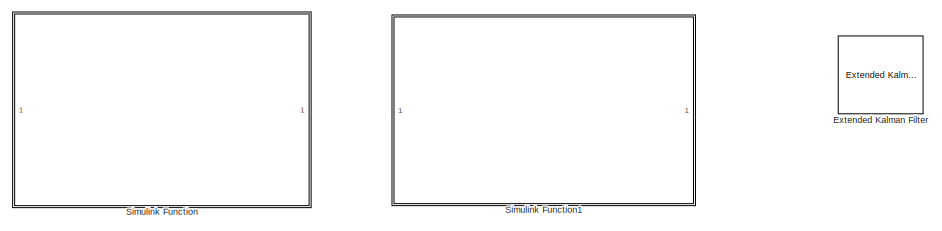
[diagram: root canvas - part 1/3, top right region]
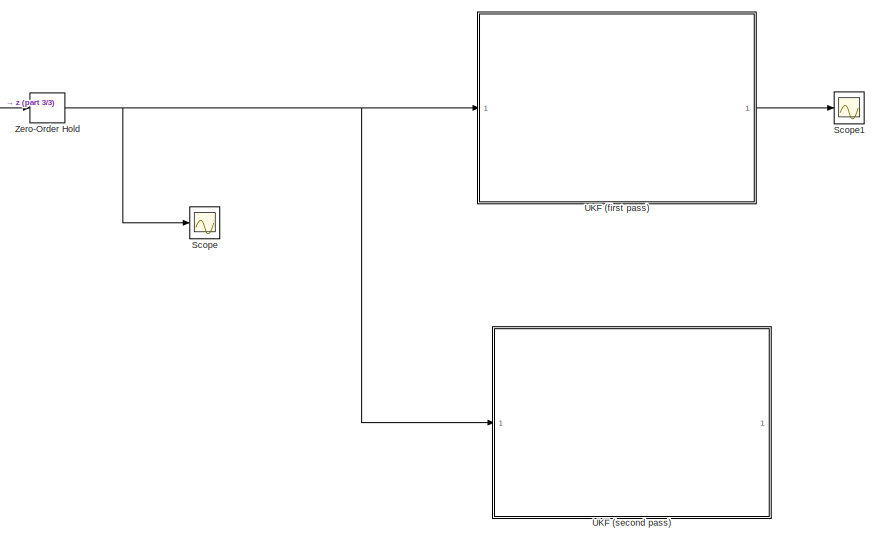
[diagram: root canvas - part 2/3, bottom center region]
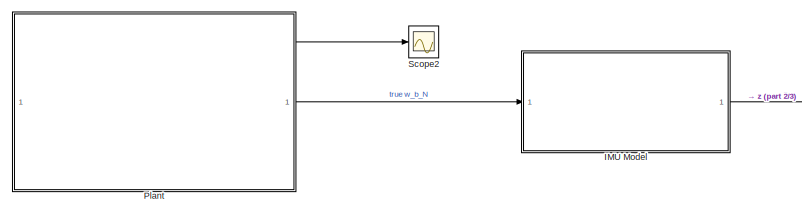
[diagram: root canvas - part 3/3, middle left region]
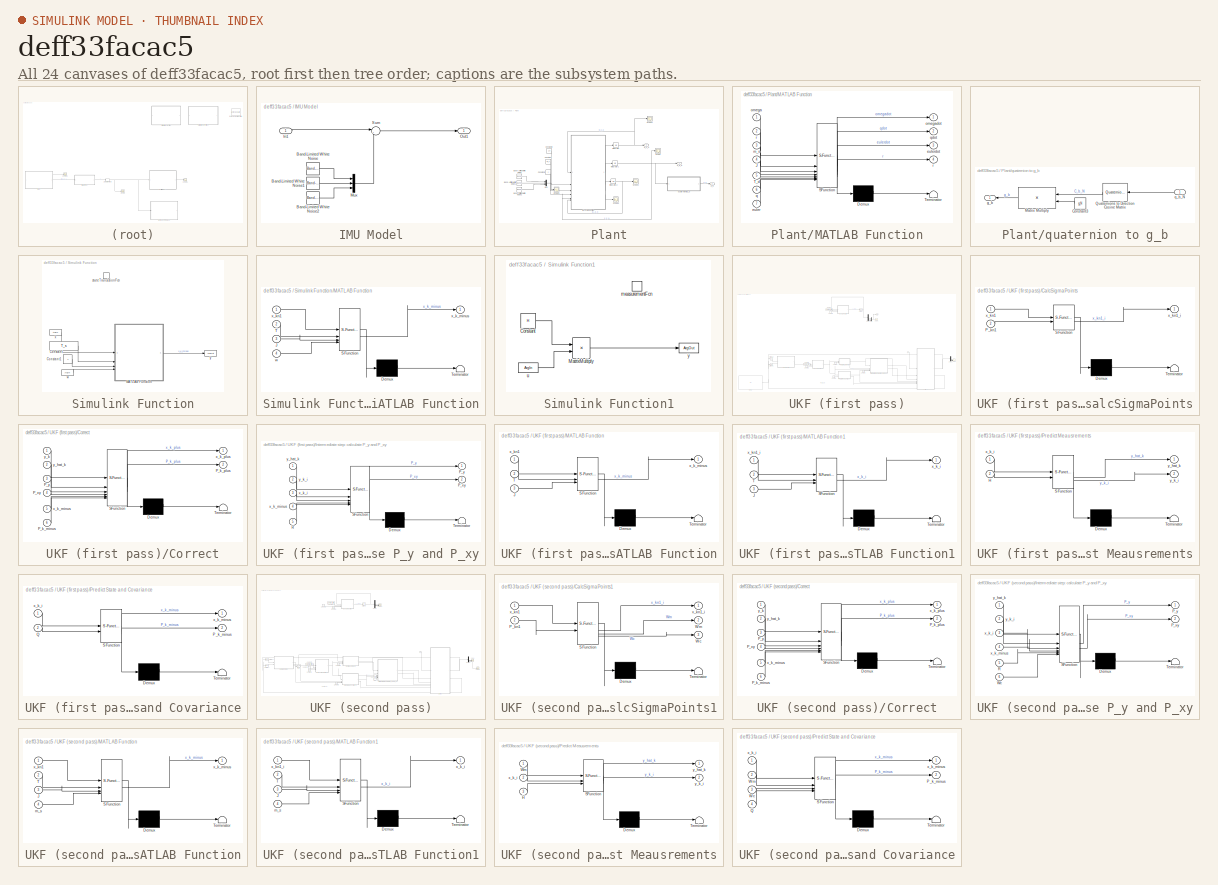
[diagram: thumbnail index - all 24 canvases of the model, root first then tree order]
MODEL slx_deff33facac5
KIND model
CONFIG AbsTol = auto
CONFIG EnableMultiTasking = off
CONFIG FixedStep = auto
CONFIG MaxStep = auto
CONFIG MinStep = auto
CONFIG RelTol = 1e-3
CONFIG SampleTimeConstraint = Unconstrained
CONFIG SolverName = ode15s
CONFIG StartTime = 0.0
CONFIG StopTime = 80
BLOCK [Reference] Extended Kalman Filter  REF=sharedTrackingLibrary/Extended Kalman Filter
  Commented = on
  LibrarySourceBlock = cstblocks/State Estimation/Extended Kalman Filter
  SourceBlock = sharedTrackingLibrary/Extended Kalman Filter
  SourceType = Extended Kalman Filter
BLOCK [SubSystem] IMU Model
BLOCK [Reference] IMU Model/Band-Limited White Noise  REF=simulink/Sources/Band-Limited
White Noise
  SourceBlock = simulink/Sources/Band-Limited\nWhite Noise
  SourceType = Band-Limited White Noise.
BLOCK [Reference] IMU Model/Band-Limited White Noise1  REF=simulink/Sources/Band-Limited
White Noise
  SourceBlock = simulink/Sources/Band-Limited\nWhite Noise
  SourceType = Band-Limited White Noise.
BLOCK [Reference] IMU Model/Band-Limited White Noise2  REF=simulink/Sources/Band-Limited
White Noise
  SourceBlock = simulink/Sources/Band-Limited\nWhite Noise
  SourceType = Band-Limited White Noise.
BLOCK [Inport] IMU Model/In1
BLOCK [Mux] IMU Model/Mux
  DisplayOption = bar
  Inputs = 3
BLOCK [Outport] IMU Model/Out1
BLOCK [Sum] IMU Model/Sum
  Inputs = |++
BLOCK [SubSystem] Plant
BLOCK [Reference] Plant/Band-Limited White Noise  REF=simulink/Sources/Band-Limited
White Noise
  SourceBlock = simulink/Sources/Band-Limited\nWhite Noise
  SourceType = Band-Limited White Noise.
BLOCK [Reference] Plant/Band-Limited White Noise1  REF=simulink/Sources/Band-Limited
White Noise
  SourceBlock = simulink/Sources/Band-Limited\nWhite Noise
  SourceType = Band-Limited White Noise.
BLOCK [Reference] Plant/Band-Limited White Noise2  REF=simulink/Sources/Band-Limited
White Noise
  SourceBlock = simulink/Sources/Band-Limited\nWhite Noise
  SourceType = Band-Limited White Noise.
BLOCK [Constant] Plant/Constant
  Value = m_s
BLOCK [Constant] Plant/Constant1
  Value = J
BLOCK [Constant] Plant/Constant2
  Value = r_0
BLOCK [Integrator] Plant/Integrator
  InitialCondition = omega_0
BLOCK [Integrator] Plant/Integrator1
  InitialCondition = q_0
  NameLocation = top
BLOCK [Integrator] Plant/Integrator2
  InitialCondition = EA_0
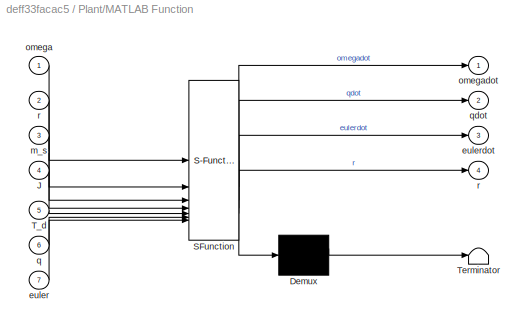
BLOCK [SubSystem] Plant/MATLAB Function
  ErrorFcn = Stateflow.Translate.translate
  PermitHierarchicalResolution = ExplicitOnly
  SFBlockType = MATLAB Function
  TreatAsAtomicUnit = on
BLOCK [Demux] Plant/MATLAB Function/ Demux 
  Outputs = 1
BLOCK [S-Function] Plant/MATLAB Function/ SFunction 
  EnableBusSupport = on
  FunctionName = sf_sfun
  PortCounts = [7 5]
  SFcnIsStateOwnerBlock = off
  SFunctionDeploymentMode = off
  Tag = Stateflow S-Function 4
BLOCK [Terminator] Plant/MATLAB Function/ Terminator 
BLOCK [Inport] Plant/MATLAB Function/J
  Port = 4
BLOCK [Inport] Plant/MATLAB Function/T_d
  Port = 5
BLOCK [Inport] Plant/MATLAB Function/euler
  Port = 7
BLOCK [Outport] Plant/MATLAB Function/eulerdot
  Port = 3
BLOCK [Inport] Plant/MATLAB Function/m_s
  Port = 3
BLOCK [Inport] Plant/MATLAB Function/omega
BLOCK [Outport] Plant/MATLAB Function/omegadot
BLOCK [Inport] Plant/MATLAB Function/q
  Port = 6
BLOCK [Outport] Plant/MATLAB Function/qdot
  Port = 2
BLOCK [Outport] Plant/MATLAB Function/r
  Port = 4
BLOCK [Inport] Plant/MATLAB Function/r 
  Port = 2
BLOCK [Mux] Plant/Mux
  DisplayOption = bar
  Inputs = 3
BLOCK [Scope] Plant/Scope
  Floating = off
  NumInputPorts = 1
  ScopeSpecificationString = Simulink.scopes.TimeScopeBlockCfg('CurrentConfiguration', extmgr.ConfigurationSet(extmgr.Configuration('Core','General UI',true),extmgr.Configuration('Core','Source UI',true),extmgr.Configuration('Sources','WiredSimulink',true,'DataLogging',true,'DataLoggingVariableName','q_b_N','DataLoggingSaveFormat','StructureWithTime'),extmgr.Configuration('Visuals','Time Domain',true,'SerializedDisplays',{str...<+1570ch>
BLOCK [Scope] Plant/Scope1
  Floating = off
  NumInputPorts = 1
  ScopeSpecificationString = Simulink.scopes.TimeScopeBlockCfg('CurrentConfiguration', extmgr.ConfigurationSet(extmgr.Configuration('Core','General UI',true),extmgr.Configuration('Core','Source UI',true),extmgr.Configuration('Sources','WiredSimulink',true,'DataLoggingVariableName','ScopeData1'),extmgr.Configuration('Visuals','Time Domain',true,'SerializedDisplays',{struct('MinYLimReal','0.00741','MaxYLimReal','0.55473','YLabe...<+1503ch>
BLOCK [Scope] Plant/Scope2
  Floating = off
  NumInputPorts = 1
  ScopeSpecificationString = Simulink.scopes.TimeScopeBlockCfg('CurrentConfiguration', extmgr.ConfigurationSet(extmgr.Configuration('Core','General UI',true),extmgr.Configuration('Core','Source UI',true),extmgr.Configuration('Sources','WiredSimulink',true,'DataLoggingVariableName','EA_b_N','DataLogging',true,'DataLoggingSaveFormat','StructureWithTime'),extmgr.Configuration('Visuals','Time Domain',true,'SerializedDisplays',{st...<+1609ch>
BLOCK [Scope] Plant/Scope3
  Floating = off
  NumInputPorts = 1
  ScopeSpecificationString = Simulink.scopes.TimeScopeBlockCfg('CurrentConfiguration', extmgr.ConfigurationSet(extmgr.Configuration('Core','General UI',true),extmgr.Configuration('Core','Source UI',true),extmgr.Configuration('Sources','WiredSimulink',true,'DataLoggingVariableName','r_b','DataLogging',true,'DataLoggingSaveFormat','StructureWithTime'),extmgr.Configuration('Visuals','Time Domain',true,'SerializedDisplays',{struc...<+1619ch>
BLOCK [Scope] Plant/Scope4
  Floating = off
  NumInputPorts = 1
  ScopeSpecificationString = Simulink.scopes.TimeScopeBlockCfg('CurrentConfiguration', extmgr.ConfigurationSet(extmgr.Configuration('Core','General UI',true),extmgr.Configuration('Core','Source UI',true),extmgr.Configuration('Sources','WiredSimulink',true,'DataLoggingVariableName','ScopeData1'),extmgr.Configuration('Visuals','Time Domain',true,'SerializedDisplays',{struct('MinYLimReal','-0.000014','MaxYLimReal','0.000013','YL...<+1567ch>
BLOCK [Outport] Plant/g_b
  Port = 3
BLOCK [Outport] Plant/q_b_N
BLOCK [SubSystem] Plant/quaternion to g_b
  NameLocation = top
BLOCK [Constant] Plant/quaternion to g_b/Constant3
  NameLocation = top
  Value = g_N
BLOCK [Product] Plant/quaternion to g_b/Matrix Multiply
  Multiplication = Matrix(*)
  NameLocation = top
BLOCK [Reference] Plant/quaternion to g_b/Quaternions to Direction Cosine Matrix  REF=sharedtransform/Quaternions to 
Direction Cosine Matrix
  NameLocation = top
  SourceBlock = sharedtransform/Quaternions to \nDirection Cosine Matrix
  SourceType = Quaternion2DCM
BLOCK [Outport] Plant/quaternion to g_b/g_b
  NameLocation = top
BLOCK [Inport] Plant/quaternion to g_b/q_b_N
  NameLocation = top
BLOCK [Outport] Plant/w_b_N
  Port = 2
BLOCK [Scope] Scope
  Floating = off
  NumInputPorts = 1
  ScopeSpecificationString = Simulink.scopes.TimeScopeBlockCfg('CurrentConfiguration', extmgr.ConfigurationSet(extmgr.Configuration('Core','General UI',true),extmgr.Configuration('Core','Source UI',true),extmgr.Configuration('Sources','WiredSimulink',true,'DataLoggingVariableName','ScopeData2'),extmgr.Configuration('Visuals','Time Domain',true,'SerializedDisplays',{struct('MinYLimReal','-0.13768','MaxYLimReal','0.16725','YLab...<+1578ch>
BLOCK [Scope] Scope1
  Commented = on
  Floating = off
  NumInputPorts = 1
  ScopeSpecificationString = Simulink.scopes.TimeScopeBlockCfg('CurrentConfiguration', extmgr.ConfigurationSet(extmgr.Configuration('Core','General UI',true),extmgr.Configuration('Core','Source UI',true),extmgr.Configuration('Sources','WiredSimulink',true,'DataLoggingVariableName','ScopeData1'),extmgr.Configuration('Visuals','Time Domain',true,'SerializedDisplays',{struct('MinYLimReal','-1.24502','MaxYLimReal','1.26361','YLab...<+2141ch>
BLOCK [Scope] Scope2
  Floating = off
  NumInputPorts = 1
  ScopeSpecificationString = Simulink.scopes.TimeScopeBlockCfg('CurrentConfiguration', extmgr.ConfigurationSet(extmgr.Configuration('Core','General UI',true),extmgr.Configuration('Core','Source UI',true),extmgr.Configuration('Sources','WiredSimulink',true,'DataLoggingVariableName','ScopeData2'),extmgr.Configuration('Visuals','Time Domain',true,'SerializedDisplays',{struct('MinYLimReal','-0.223','MaxYLimReal','1.13589','YLabel...<+1534ch>
BLOCK [SubSystem] Simulink Function
  Commented = on
  TreatAsAtomicUnit = on
BLOCK [Constant] Simulink Function/Constant
  Value = T_s
BLOCK [Constant] Simulink Function/Constant1
  Value = J
BLOCK [SubSystem] Simulink Function/MATLAB Function
  ErrorFcn = Stateflow.Translate.translate
  PermitHierarchicalResolution = ExplicitOnly
  SFBlockType = MATLAB Function
  TreatAsAtomicUnit = on
BLOCK [Demux] Simulink Function/MATLAB Function/ Demux 
  Outputs = 1
BLOCK [S-Function] Simulink Function/MATLAB Function/ SFunction 
  EnableBusSupport = on
  FunctionName = sf_sfun
  PortCounts = [4 2]
  SFcnIsStateOwnerBlock = off
  SFunctionDeploymentMode = off
  Tag = Stateflow S-Function 2
BLOCK [Terminator] Simulink Function/MATLAB Function/ Terminator 
BLOCK [Inport] Simulink Function/MATLAB Function/J
  Port = 3
BLOCK [Inport] Simulink Function/MATLAB Function/T
  Port = 2
BLOCK [Inport] Simulink Function/MATLAB Function/w
  Port = 4
BLOCK [Outport] Simulink Function/MATLAB Function/x_k_minus
BLOCK [Inport] Simulink Function/MATLAB Function/x_kn1
BLOCK [TriggerPort] Simulink Function/stateTransistionFcn
  FunctionName = stateTransistionFcn
  FunctionVisibility = scoped
  IsSimulinkFunction = on
  StatesWhenEnabling = held
  TriggerType = function-call
  VariantControl = (inherit)
BLOCK [ArgIn] Simulink Function/w
  ArgumentName = w
  DisableCoverage = on
  Port = 2
  PortDimensions = 3
BLOCK [ArgIn] Simulink Function/x
  ArgumentName = x
  DisableCoverage = on
  PortDimensions = 7
BLOCK [ArgOut] Simulink Function/y
  ArgumentName = xNext
  DisableCoverage = on
  PortDimensions = 7
BLOCK [SubSystem] Simulink Function1
  Commented = on
  TreatAsAtomicUnit = on
BLOCK [Constant] Simulink Function1/Constant
  Value = H
BLOCK [Product] Simulink Function1/MatrixMultiply
  Multiplication = Matrix(*)
BLOCK [TriggerPort] Simulink Function1/measurementFcn
  FunctionName = measurementFcn
  FunctionVisibility = scoped
  IsSimulinkFunction = on
  StatesWhenEnabling = held
  TriggerType = function-call
  VariantControl = (inherit)
BLOCK [ArgIn] Simulink Function1/u
  ArgumentName = x
  DisableCoverage = on
  PortDimensions = 7
BLOCK [ArgOut] Simulink Function1/y
  ArgumentName = y
  DisableCoverage = on
  PortDimensions = 3
BLOCK [SubSystem] UKF (first pass)
  Commented = on
  TreatAsAtomicUnit = on
BLOCK [SubSystem] UKF (first pass)/CalcSigmaPoints
  ErrorFcn = Stateflow.Translate.translate
  PermitHierarchicalResolution = ExplicitOnly
  SFBlockType = MATLAB Function
  TreatAsAtomicUnit = on
BLOCK [Demux] UKF (first pass)/CalcSigmaPoints/ Demux 
  Outputs = 1
BLOCK [S-Function] UKF (first pass)/CalcSigmaPoints/ SFunction 
  EnableBusSupport = on
  FunctionName = sf_sfun
  PortCounts = [2 2]
  SFcnIsStateOwnerBlock = off
  SFunctionDeploymentMode = off
  Tag = Stateflow S-Function 3
BLOCK [Terminator] UKF (first pass)/CalcSigmaPoints/ Terminator 
BLOCK [Inport] UKF (first pass)/CalcSigmaPoints/P_kn1
  Port = 2
BLOCK [Inport] UKF (first pass)/CalcSigmaPoints/x_kn1
BLOCK [Outport] UKF (first pass)/CalcSigmaPoints/x_kn1_i
BLOCK [Constant] UKF (first pass)/Constant
  Value = sample_time
BLOCK [Constant] UKF (first pass)/Constant1
  Value = J
BLOCK [Constant] UKF (first pass)/Constant2
  Value = sample_time
BLOCK [Constant] UKF (first pass)/Constant3
  Value = J
BLOCK [Constant] UKF (first pass)/Constant6
  Value = Q
BLOCK [Constant] UKF (first pass)/Constant7
  Value = H
BLOCK [Constant] UKF (first pass)/Constant8
  Value = R
BLOCK [SubSystem] UKF (first pass)/Correct
  ErrorFcn = Stateflow.Translate.translate
  PermitHierarchicalResolution = ExplicitOnly
  SFBlockType = MATLAB Function
  TreatAsAtomicUnit = on
BLOCK [Demux] UKF (first pass)/Correct/ Demux 
  Outputs = 1
BLOCK [S-Function] UKF (first pass)/Correct/ SFunction 
  EnableBusSupport = on
  FunctionName = sf_sfun
  PortCounts = [6 3]
  SFcnIsStateOwnerBlock = off
  SFunctionDeploymentMode = off
  Tag = Stateflow S-Function 9
BLOCK [Terminator] UKF (first pass)/Correct/ Terminator 
BLOCK [Inport] UKF (first pass)/Correct/P_k_minus
  Port = 6
BLOCK [Outport] UKF (first pass)/Correct/P_k_plus
  Port = 2
BLOCK [Inport] UKF (first pass)/Correct/P_xy
  Port = 4
BLOCK [Inport] UKF (first pass)/Correct/P_y
  Port = 3
BLOCK [Inport] UKF (first pass)/Correct/x_k_minus
  Port = 5
BLOCK [Outport] UKF (first pass)/Correct/x_k_plus
BLOCK [Inport] UKF (first pass)/Correct/y_hat_k
  Port = 2
BLOCK [Inport] UKF (first pass)/Correct/y_k
BLOCK [Demux] UKF (first pass)/Demux
  Outputs = 7
BLOCK [Demux] UKF (first pass)/Demux1
  Outputs = 7
BLOCK [Display] UKF (first pass)/Display
  Decimation = 1
  NameLocation = top
BLOCK [SubSystem] UKF (first pass)/Intermediate step: calculate P_y and P_xy
  ErrorFcn = Stateflow.Translate.translate
  PermitHierarchicalResolution = ExplicitOnly
  SFBlockType = MATLAB Function
  TreatAsAtomicUnit = on
BLOCK [Demux] UKF (first pass)/Intermediate step: calculate P_y and P_xy/ Demux 
  Outputs = 1
BLOCK [S-Function] UKF (first pass)/Intermediate step: calculate P_y and P_xy/ SFunction 
  EnableBusSupport = on
  FunctionName = sf_sfun
  PortCounts = [5 3]
  SFcnIsStateOwnerBlock = off
  SFunctionDeploymentMode = off
  Tag = Stateflow S-Function 8
BLOCK [Terminator] UKF (first pass)/Intermediate step: calculate P_y and P_xy/ Terminator 
BLOCK [Outport] UKF (first pass)/Intermediate step: calculate P_y and P_xy/P_xy
  Port = 2
BLOCK [Outport] UKF (first pass)/Intermediate step: calculate P_y and P_xy/P_y
BLOCK [Inport] UKF (first pass)/Intermediate step: calculate P_y and P_xy/R
  Port = 5
BLOCK [Inport] UKF (first pass)/Intermediate step: calculate P_y and P_xy/x_k_i
  Port = 3
BLOCK [Inport] UKF (first pass)/Intermediate step: calculate P_y and P_xy/x_k_minus
  Port = 4
BLOCK [Inport] UKF (first pass)/Intermediate step: calculate P_y and P_xy/y_hat_k
BLOCK [Inport] UKF (first pass)/Intermediate step: calculate P_y and P_xy/y_k_i
  Port = 2
BLOCK [SubSystem] UKF (first pass)/MATLAB Function
  ErrorFcn = Stateflow.Translate.translate
  PermitHierarchicalResolution = ExplicitOnly
  SFBlockType = MATLAB Function
  TreatAsAtomicUnit = on
BLOCK [Demux] UKF (first pass)/MATLAB Function/ Demux 
  Outputs = 1
BLOCK [S-Function] UKF (first pass)/MATLAB Function/ SFunction 
  EnableBusSupport = on
  FunctionName = sf_sfun
  PortCounts = [3 2]
  SFcnIsStateOwnerBlock = off
  SFunctionDeploymentMode = off
  Tag = Stateflow S-Function 1
BLOCK [Terminator] UKF (first pass)/MATLAB Function/ Terminator 
BLOCK [Inport] UKF (first pass)/MATLAB Function/J
  Port = 3
BLOCK [Inport] UKF (first pass)/MATLAB Function/T
  Port = 2
BLOCK [Outport] UKF (first pass)/MATLAB Function/x_k_minus
BLOCK [Inport] UKF (first pass)/MATLAB Function/x_kn1
BLOCK [SubSystem] UKF (first pass)/MATLAB Function1
  ErrorFcn = Stateflow.Translate.translate
  PermitHierarchicalResolution = ExplicitOnly
  SFBlockType = MATLAB Function
  TreatAsAtomicUnit = on
BLOCK [Demux] UKF (first pass)/MATLAB Function1/ Demux 
  Outputs = 1
BLOCK [S-Function] UKF (first pass)/MATLAB Function1/ SFunction 
  EnableBusSupport = on
  FunctionName = sf_sfun
  PortCounts = [3 2]
  SFcnIsStateOwnerBlock = off
  SFunctionDeploymentMode = off
  Tag = Stateflow S-Function 5
BLOCK [Terminator] UKF (first pass)/MATLAB Function1/ Terminator 
BLOCK [Inport] UKF (first pass)/MATLAB Function1/J
  Port = 3
BLOCK [Inport] UKF (first pass)/MATLAB Function1/T
  Port = 2
BLOCK [Outport] UKF (first pass)/MATLAB Function1/x_k_i
BLOCK [Inport] UKF (first pass)/MATLAB Function1/x_kn1_i
BLOCK [Mux] UKF (first pass)/Mux
  DisplayOption = bar
BLOCK [Outport] UKF (first pass)/Out1
BLOCK [SubSystem] UKF (first pass)/Predict Meausrements
  ErrorFcn = Stateflow.Translate.translate
  PermitHierarchicalResolution = ExplicitOnly
  SFBlockType = MATLAB Function
  TreatAsAtomicUnit = on
BLOCK [Demux] UKF (first pass)/Predict Meausrements/ Demux 
  Outputs = 1
BLOCK [S-Function] UKF (first pass)/Predict Meausrements/ SFunction 
  EnableBusSupport = on
  FunctionName = sf_sfun
  PortCounts = [2 3]
  SFcnIsStateOwnerBlock = off
  SFunctionDeploymentMode = off
  Tag = Stateflow S-Function 7
BLOCK [Terminator] UKF (first pass)/Predict Meausrements/ Terminator 
BLOCK [Inport] UKF (first pass)/Predict Meausrements/H
  Port = 2
BLOCK [Inport] UKF (first pass)/Predict Meausrements/x_k_i
BLOCK [Outport] UKF (first pass)/Predict Meausrements/y_hat_k
BLOCK [Outport] UKF (first pass)/Predict Meausrements/y_k_i
  Port = 2
BLOCK [SubSystem] UKF (first pass)/Predict State and Covariance
  ErrorFcn = Stateflow.Translate.translate
  PermitHierarchicalResolution = ExplicitOnly
  SFBlockType = MATLAB Function
  TreatAsAtomicUnit = on
BLOCK [Demux] UKF (first pass)/Predict State and Covariance/ Demux 
  Outputs = 1
BLOCK [S-Function] UKF (first pass)/Predict State and Covariance/ SFunction 
  EnableBusSupport = on
  FunctionName = sf_sfun
  PortCounts = [2 3]
  SFcnIsStateOwnerBlock = off
  SFunctionDeploymentMode = off
  Tag = Stateflow S-Function 6
BLOCK [Terminator] UKF (first pass)/Predict State and Covariance/ Terminator 
BLOCK [Outport] UKF (first pass)/Predict State and Covariance/P_k_minus
  Port = 2
BLOCK [Inport] UKF (first pass)/Predict State and Covariance/Q
  Port = 2
BLOCK [Inport] UKF (first pass)/Predict State and Covariance/x_k_i
BLOCK [Outport] UKF (first pass)/Predict State and Covariance/x_k_minus
BLOCK [Scope] UKF (first pass)/Scope
  Floating = off
  NumInputPorts = 4
  ScopeSpecificationString = Simulink.scopes.TimeScopeBlockCfg('CurrentConfiguration', extmgr.ConfigurationSet(extmgr.Configuration('Core','General UI',true),extmgr.Configuration('Core','Source UI',true),extmgr.Configuration('Sources','WiredSimulink',true,'DataLoggingVariableName','ScopeData1'),extmgr.Configuration('Visuals','Time Domain',true,'SerializedDisplays',{struct('MinYLimReal','-0.11948','MaxYLimReal','1.1241','YLabe...<+1527ch>
BLOCK [Scope] UKF (first pass)/Scope1
  Floating = off
  NumInputPorts = 1
  ScopeSpecificationString = Simulink.scopes.TimeScopeBlockCfg('CurrentConfiguration', extmgr.ConfigurationSet(extmgr.Configuration('Core','General UI',true),extmgr.Configuration('Core','Source UI',true),extmgr.Configuration('Sources','WiredSimulink',true,'DataLoggingVariableName','ScopeData3'),extmgr.Configuration('Visuals','Time Domain',true,'SerializedDisplays',{struct('MinYLimReal','-1.21052','MaxYLimReal','1.81089','YLab...<+1561ch>
BLOCK [UnitDelay] UKF (first pass)/Unit Delay
  HasFrameUpgradeWarning = on
  InitialCondition = x_0
  SampleTime = sample_time
BLOCK [UnitDelay] UKF (first pass)/Unit Delay1
  HasFrameUpgradeWarning = on
  InitialCondition = P_0
  SampleTime = sample_time
BLOCK [UnitDelay] UKF (first pass)/Unit Delay2
  HasFrameUpgradeWarning = on
  InitialCondition = x_0
  SampleTime = -1
BLOCK [Inport] UKF (first pass)/y
  NameLocation = left
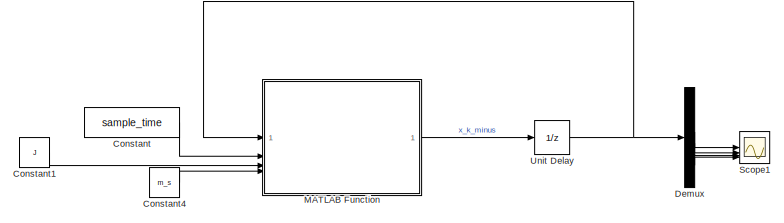
[diagram: UKF (second pass) - part 1/4, top center region]
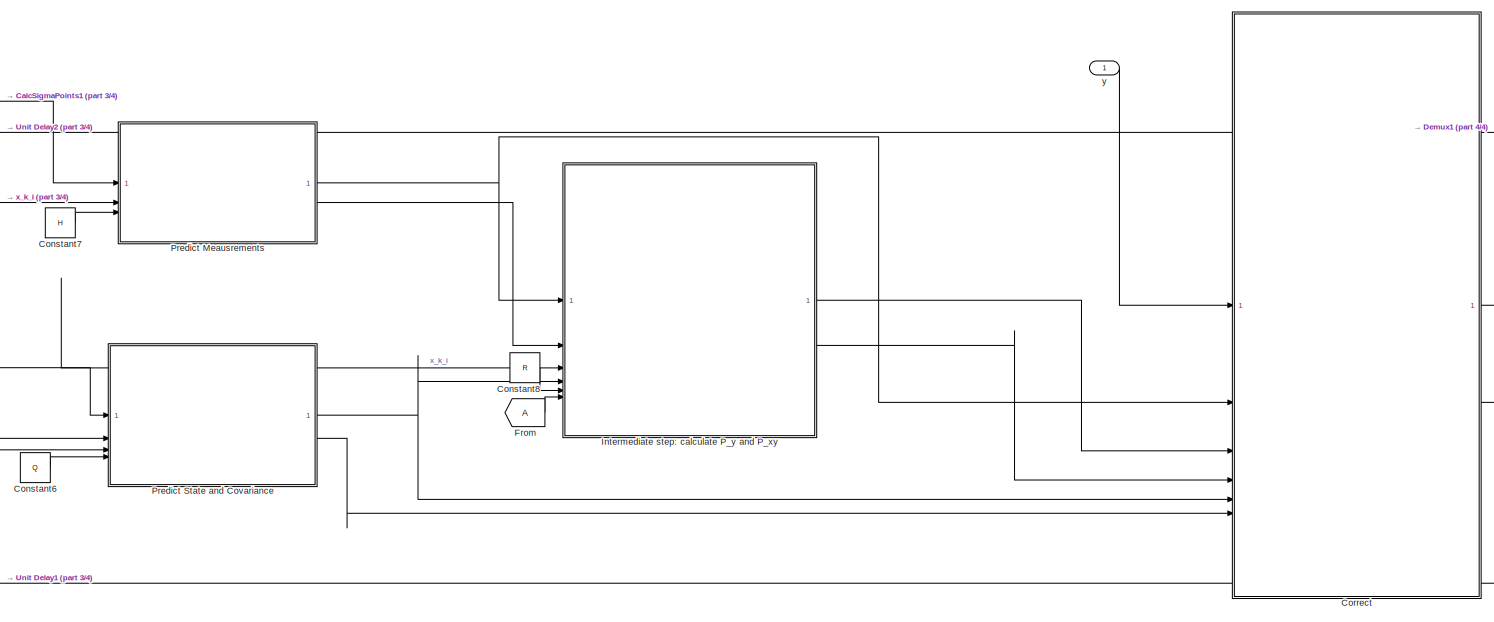
[diagram: UKF (second pass) - part 2/4, bottom center region]
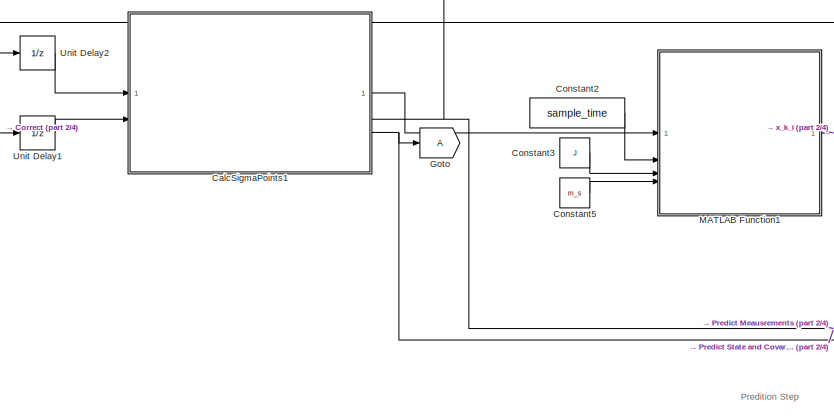
[diagram: UKF (second pass) - part 3/4, bottom left region]
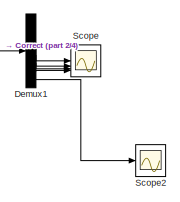
[diagram: UKF (second pass) - part 4/4, bottom right region]
BLOCK [SubSystem] UKF (second pass)
  TreatAsAtomicUnit = on
BLOCK [SubSystem] UKF (second pass)/CalcSigmaPoints1
  ErrorFcn = Stateflow.Translate.translate
  PermitHierarchicalResolution = ExplicitOnly
  SFBlockType = MATLAB Function
  TreatAsAtomicUnit = on
BLOCK [Demux] UKF (second pass)/CalcSigmaPoints1/ Demux 
  Outputs = 1
BLOCK [S-Function] UKF (second pass)/CalcSigmaPoints1/ SFunction 
  EnableBusSupport = on
  FunctionName = sf_sfun
  PortCounts = [2 4]
  SFcnIsStateOwnerBlock = off
  SFunctionDeploymentMode = off
  Tag = Stateflow S-Function 10
BLOCK [Terminator] UKF (second pass)/CalcSigmaPoints1/ Terminator 
BLOCK [Inport] UKF (second pass)/CalcSigmaPoints1/P_kn1
  Port = 2
BLOCK [Outport] UKF (second pass)/CalcSigmaPoints1/Wc
  Port = 3
BLOCK [Outport] UKF (second pass)/CalcSigmaPoints1/Wm
  Port = 2
BLOCK [Inport] UKF (second pass)/CalcSigmaPoints1/x_kn1
BLOCK [Outport] UKF (second pass)/CalcSigmaPoints1/x_kn1_i
BLOCK [Constant] UKF (second pass)/Constant
  Value = sample_time
BLOCK [Constant] UKF (second pass)/Constant1
  Value = J
BLOCK [Constant] UKF (second pass)/Constant2
  Value = sample_time
BLOCK [Constant] UKF (second pass)/Constant3
  Value = J
BLOCK [Constant] UKF (second pass)/Constant4
  Value = m_s
BLOCK [Constant] UKF (second pass)/Constant5
  Value = m_s
BLOCK [Constant] UKF (second pass)/Constant6
  Value = Q
BLOCK [Constant] UKF (second pass)/Constant7
  Value = H
BLOCK [Constant] UKF (second pass)/Constant8
  Value = R
BLOCK [SubSystem] UKF (second pass)/Correct
  ErrorFcn = Stateflow.Translate.translate
  PermitHierarchicalResolution = ExplicitOnly
  SFBlockType = MATLAB Function
  TreatAsAtomicUnit = on
BLOCK [Demux] UKF (second pass)/Correct/ Demux 
  Outputs = 1
BLOCK [S-Function] UKF (second pass)/Correct/ SFunction 
  EnableBusSupport = on
  FunctionName = sf_sfun
  PortCounts = [6 3]
  SFcnIsStateOwnerBlock = off
  SFunctionDeploymentMode = off
  Tag = Stateflow S-Function 12
BLOCK [Terminator] UKF (second pass)/Correct/ Terminator 
BLOCK [Inport] UKF (second pass)/Correct/P_k_minus
  Port = 6
BLOCK [Outport] UKF (second pass)/Correct/P_k_plus
  Port = 2
BLOCK [Inport] UKF (second pass)/Correct/P_xy
  Port = 4
BLOCK [Inport] UKF (second pass)/Correct/P_y
  Port = 3
BLOCK [Inport] UKF (second pass)/Correct/x_k_minus
  Port = 5
BLOCK [Outport] UKF (second pass)/Correct/x_k_plus
BLOCK [Inport] UKF (second pass)/Correct/y_hat_k
  Port = 2
BLOCK [Inport] UKF (second pass)/Correct/y_k
BLOCK [Demux] UKF (second pass)/Demux
  Outputs = 8
BLOCK [Demux] UKF (second pass)/Demux1
  Outputs = 8
BLOCK [From] UKF (second pass)/From
BLOCK [Goto] UKF (second pass)/Goto
BLOCK [SubSystem] UKF (second pass)/Intermediate step: calculate P_y and P_xy
  ErrorFcn = Stateflow.Translate.translate
  PermitHierarchicalResolution = ExplicitOnly
  SFBlockType = MATLAB Function
  TreatAsAtomicUnit = on
BLOCK [Demux] UKF (second pass)/Intermediate step: calculate P_y and P_xy/ Demux 
  Outputs = 1
BLOCK [S-Function] UKF (second pass)/Intermediate step: calculate P_y and P_xy/ SFunction 
  EnableBusSupport = on
  FunctionName = sf_sfun
  PortCounts = [6 3]
  SFcnIsStateOwnerBlock = off
  SFunctionDeploymentMode = off
  Tag = Stateflow S-Function 13
BLOCK [Terminator] UKF (second pass)/Intermediate step: calculate P_y and P_xy/ Terminator 
BLOCK [Outport] UKF (second pass)/Intermediate step: calculate P_y and P_xy/P_xy
  Port = 2
BLOCK [Outport] UKF (second pass)/Intermediate step: calculate P_y and P_xy/P_y
BLOCK [Inport] UKF (second pass)/Intermediate step: calculate P_y and P_xy/R
  Port = 5
BLOCK [Inport] UKF (second pass)/Intermediate step: calculate P_y and P_xy/Wc
  Port = 6
BLOCK [Inport] UKF (second pass)/Intermediate step: calculate P_y and P_xy/x_k_i
  Port = 3
BLOCK [Inport] UKF (second pass)/Intermediate step: calculate P_y and P_xy/x_k_minus
  Port = 4
BLOCK [Inport] UKF (second pass)/Intermediate step: calculate P_y and P_xy/y_hat_k
BLOCK [Inport] UKF (second pass)/Intermediate step: calculate P_y and P_xy/y_k_i
  Port = 2
BLOCK [SubSystem] UKF (second pass)/MATLAB Function
  ErrorFcn = Stateflow.Translate.translate
  PermitHierarchicalResolution = ExplicitOnly
  SFBlockType = MATLAB Function
  TreatAsAtomicUnit = on
BLOCK [Demux] UKF (second pass)/MATLAB Function/ Demux 
  Outputs = 1
BLOCK [S-Function] UKF (second pass)/MATLAB Function/ SFunction 
  EnableBusSupport = on
  FunctionName = sf_sfun
  PortCounts = [4 2]
  SFcnIsStateOwnerBlock = off
  SFunctionDeploymentMode = off
  Tag = Stateflow S-Function 14
BLOCK [Terminator] UKF (second pass)/MATLAB Function/ Terminator 
BLOCK [Inport] UKF (second pass)/MATLAB Function/J
  Port = 3
BLOCK [Inport] UKF (second pass)/MATLAB Function/T
  Port = 2
BLOCK [Inport] UKF (second pass)/MATLAB Function/m_s
  Port = 4
BLOCK [Outport] UKF (second pass)/MATLAB Function/x_k_minus
BLOCK [Inport] UKF (second pass)/MATLAB Function/x_kn1
BLOCK [SubSystem] UKF (second pass)/MATLAB Function1
  ErrorFcn = Stateflow.Translate.translate
  PermitHierarchicalResolution = ExplicitOnly
  SFBlockType = MATLAB Function
  TreatAsAtomicUnit = on
BLOCK [Demux] UKF (second pass)/MATLAB Function1/ Demux 
  Outputs = 1
BLOCK [S-Function] UKF (second pass)/MATLAB Function1/ SFunction 
  EnableBusSupport = on
  FunctionName = sf_sfun
  PortCounts = [4 2]
  SFcnIsStateOwnerBlock = off
  SFunctionDeploymentMode = off
  Tag = Stateflow S-Function 15
BLOCK [Terminator] UKF (second pass)/MATLAB Function1/ Terminator 
BLOCK [Inport] UKF (second pass)/MATLAB Function1/J
  Port = 3
BLOCK [Inport] UKF (second pass)/MATLAB Function1/T
  Port = 2
BLOCK [Inport] UKF (second pass)/MATLAB Function1/m_s
  Port = 4
BLOCK [Outport] UKF (second pass)/MATLAB Function1/x_k_i
BLOCK [Inport] UKF (second pass)/MATLAB Function1/x_kn1_i
BLOCK [SubSystem] UKF (second pass)/Predict Meausrements
  ErrorFcn = Stateflow.Translate.translate
  PermitHierarchicalResolution = ExplicitOnly
  SFBlockType = MATLAB Function
  TreatAsAtomicUnit = on
BLOCK [Demux] UKF (second pass)/Predict Meausrements/ Demux 
  Outputs = 1
BLOCK [S-Function] UKF (second pass)/Predict Meausrements/ SFunction 
  EnableBusSupport = on
  FunctionName = sf_sfun
  PortCounts = [3 3]
  SFcnIsStateOwnerBlock = off
  SFunctionDeploymentMode = off
  Tag = Stateflow S-Function 16
BLOCK [Terminator] UKF (second pass)/Predict Meausrements/ Terminator 
BLOCK [Inport] UKF (second pass)/Predict Meausrements/H
  Port = 3
BLOCK [Inport] UKF (second pass)/Predict Meausrements/Wm
BLOCK [Inport] UKF (second pass)/Predict Meausrements/x_k_i
  Port = 2
BLOCK [Outport] UKF (second pass)/Predict Meausrements/y_hat_k
BLOCK [Outport] UKF (second pass)/Predict Meausrements/y_k_i
  Port = 2
BLOCK [SubSystem] UKF (second pass)/Predict State and Covariance
  ErrorFcn = Stateflow.Translate.translate
  PermitHierarchicalResolution = ExplicitOnly
  SFBlockType = MATLAB Function
  TreatAsAtomicUnit = on
BLOCK [Demux] UKF (second pass)/Predict State and Covariance/ Demux 
  Outputs = 1
BLOCK [S-Function] UKF (second pass)/Predict State and Covariance/ SFunction 
  EnableBusSupport = on
  FunctionName = sf_sfun
  PortCounts = [4 3]
  SFcnIsStateOwnerBlock = off
  SFunctionDeploymentMode = off
  Tag = Stateflow S-Function 17
BLOCK [Terminator] UKF (second pass)/Predict State and Covariance/ Terminator 
BLOCK [Outport] UKF (second pass)/Predict State and Covariance/P_k_minus
  Port = 2
BLOCK [Inport] UKF (second pass)/Predict State and Covariance/Q
  Port = 4
BLOCK [Inport] UKF (second pass)/Predict State and Covariance/Wc
  Port = 3
BLOCK [Inport] UKF (second pass)/Predict State and Covariance/Wm
  Port = 2
BLOCK [Inport] UKF (second pass)/Predict State and Covariance/x_k_i
BLOCK [Outport] UKF (second pass)/Predict State and Covariance/x_k_minus
BLOCK [Scope] UKF (second pass)/Scope
  Floating = off
  NumInputPorts = 4
  ScopeSpecificationString = Simulink.scopes.TimeScopeBlockCfg('CurrentConfiguration', extmgr.ConfigurationSet(extmgr.Configuration('Core','General UI',true),extmgr.Configuration('Core','Source UI',true),extmgr.Configuration('Sources','WiredSimulink',true,'DataLoggingVariableName','ScopeData1'),extmgr.Configuration('Visuals','Time Domain',true,'SerializedDisplays',{struct('MinYLimReal','-0.22357','MaxYLimReal','1.13595','YLab...<+1519ch>
BLOCK [Scope] UKF (second pass)/Scope1
  Floating = off
  NumInputPorts = 4
  ScopeSpecificationString = Simulink.scopes.TimeScopeBlockCfg('CurrentConfiguration', extmgr.ConfigurationSet(extmgr.Configuration('Core','General UI',true),extmgr.Configuration('Core','Source UI',true),extmgr.Configuration('Sources','WiredSimulink',true,'DataLoggingVariableName','ScopeData1'),extmgr.Configuration('Visuals','Time Domain',true,'SerializedDisplays',{struct('MinYLimReal','-0.24498','MaxYLimReal','1.13959','YLab...<+1515ch>
BLOCK [Scope] UKF (second pass)/Scope2
  Floating = off
  NumInputPorts = 1
  ScopeSpecificationString = Simulink.scopes.TimeScopeBlockCfg('CurrentConfiguration', extmgr.ConfigurationSet(extmgr.Configuration('Core','General UI',true),extmgr.Configuration('Core','Source UI',true),extmgr.Configuration('Sources','WiredSimulink',true,'DataLoggingVariableName','ScopeData1'),extmgr.Configuration('Visuals','Time Domain',true,'SerializedDisplays',{struct('MinYLimReal','-0.00075','MaxYLimReal','0.00669','YLab...<+1632ch>
BLOCK [UnitDelay] UKF (second pass)/Unit Delay
  HasFrameUpgradeWarning = on
  InitialCondition = x_0
  SampleTime = sample_time
BLOCK [UnitDelay] UKF (second pass)/Unit Delay1
  HasFrameUpgradeWarning = on
  InitialCondition = P_0
  SampleTime = sample_time
BLOCK [UnitDelay] UKF (second pass)/Unit Delay2
  HasFrameUpgradeWarning = on
  InitialCondition = x_0
  SampleTime = sample_time
BLOCK [Inport] UKF (second pass)/y
  NameLocation = left
BLOCK [ZeroOrderHold] Zero-Order Hold
  SampleTime = sample_time
ANNOTATION UKF (first pass): Predition Step
ANNOTATION UKF (second pass): Predition Step
LINE IMU Model/Band-Limited White Noise1:1 -> IMU Model/Mux:2
LINE IMU Model/Band-Limited White Noise2:1 -> IMU Model/Mux:3
LINE IMU Model/Band-Limited White Noise:1 -> IMU Model/Mux:1
LINE IMU Model/In1:1 -> IMU Model/Sum:1
LINE IMU Model/Mux:1 -> IMU Model/Sum:2
LINE IMU Model/Sum:1 -> IMU Model/Out1:1
LINE IMU Model:1 -> Zero-Order Hold:1
LINE Plant/Band-Limited White Noise1:1 -> Plant/Mux:2
LINE Plant/Band-Limited White Noise2:1 -> Plant/Mux:3
LINE Plant/Band-Limited White Noise:1 -> Plant/Mux:1
LINE Plant/Constant1:1 -> Plant/MATLAB Function:4
LINE Plant/Constant2:1 -> Plant/MATLAB Function:2
LINE Plant/Constant:1 -> Plant/MATLAB Function:3
NET Plant/Integrator1:1 -> Plant/MATLAB Function:6, Plant/Scope:1, Plant/q_b_N:1, Plant/quaternion to g_b:1
NET Plant/Integrator2:1 -> Plant/MATLAB Function:7, Plant/Scope2:1
NET Plant/Integrator:1 -> Plant/MATLAB Function:1, Plant/Scope1:1, Plant/w_b_N:1
LINE Plant/MATLAB Function:1 -> Plant/Integrator:1
LINE Plant/MATLAB Function:2 -> Plant/Integrator1:1
LINE Plant/MATLAB Function:3 -> Plant/Integrator2:1
LINE Plant/MATLAB Function:4 -> Plant/Scope3:1
LINE Plant/Mux:1 -> Plant/Scope4:1
LINE Plant/quaternion to g_b/Constant3:1 -> Plant/quaternion to g_b/Matrix Multiply:2
LINE Plant/quaternion to g_b/Matrix Multiply:1 -> Plant/quaternion to g_b/g_b:1
LINE Plant/quaternion to g_b/Quaternions to Direction Cosine Matrix:1 -> Plant/quaternion to g_b/Matrix Multiply:1
LINE Plant/quaternion to g_b/q_b_N:1 -> Plant/quaternion to g_b/Quaternions to Direction Cosine Matrix:1
LINE Plant/quaternion to g_b:1 -> Plant/g_b:1
LINE Plant:1 -> Scope2:1
LINE Plant:2 -> IMU Model:1
LINE Simulink Function/Constant1:1 -> Simulink Function/MATLAB Function:3
LINE Simulink Function/Constant:1 -> Simulink Function/MATLAB Function:2
LINE Simulink Function/MATLAB Function:1 -> Simulink Function/y:1
LINE Simulink Function/w:1 -> Simulink Function/MATLAB Function:4
LINE Simulink Function/x:1 -> Simulink Function/MATLAB Function:1
LINE Simulink Function1/Constant:1 -> Simulink Function1/MatrixMultiply:1
LINE Simulink Function1/MatrixMultiply:1 -> Simulink Function1/y:1
LINE Simulink Function1/u:1 -> Simulink Function1/MatrixMultiply:2
LINE UKF (first pass)/CalcSigmaPoints:1 -> UKF (first pass)/MATLAB Function1:1
LINE UKF (first pass)/Constant1:1 -> UKF (first pass)/MATLAB Function:3
LINE UKF (first pass)/Constant2:1 -> UKF (first pass)/MATLAB Function1:2
LINE UKF (first pass)/Constant3:1 -> UKF (first pass)/MATLAB Function1:3
LINE UKF (first pass)/Constant6:1 -> UKF (first pass)/Predict State and Covariance:2
LINE UKF (first pass)/Constant7:1 -> UKF (first pass)/Predict Meausrements:2
LINE UKF (first pass)/Constant8:1 -> UKF (first pass)/Intermediate step: calculate P_y and P_xy:5
LINE UKF (first pass)/Constant:1 -> UKF (first pass)/MATLAB Function:2
NET UKF (first pass)/Correct:1 -> UKF (first pass)/Demux1:1, UKF (first pass)/Unit Delay2:1
NET UKF (first pass)/Correct:2 -> UKF (first pass)/Display:1, UKF (first pass)/Unit Delay1:1
LINE UKF (first pass)/Demux1:4 -> UKF (first pass)/Scope:1
LINE UKF (first pass)/Demux1:5 -> UKF (first pass)/Scope:2
LINE UKF (first pass)/Demux1:6 -> UKF (first pass)/Scope:3
LINE UKF (first pass)/Demux1:7 -> UKF (first pass)/Scope:4
LINE UKF (first pass)/Demux:4 -> UKF (first pass)/Mux:1
LINE UKF (first pass)/Demux:5 -> UKF (first pass)/Mux:2
LINE UKF (first pass)/Demux:6 -> UKF (first pass)/Mux:3
LINE UKF (first pass)/Demux:7 -> UKF (first pass)/Mux:4
LINE UKF (first pass)/Intermediate step: calculate P_y and P_xy:1 -> UKF (first pass)/Correct:3
LINE UKF (first pass)/Intermediate step: calculate P_y and P_xy:2 -> UKF (first pass)/Correct:4
NET UKF (first pass)/MATLAB Function1:1 -> UKF (first pass)/Intermediate step: calculate P_y and P_xy:3, UKF (first pass)/Predict Meausrements:1, UKF (first pass)/Predict State and Covariance:1
LINE UKF (first pass)/MATLAB Function:1 -> UKF (first pass)/Unit Delay:1
NET UKF (first pass)/Mux:1 -> UKF (first pass)/Out1:1, UKF (first pass)/Scope1:1
NET UKF (first pass)/Predict Meausrements:1 -> UKF (first pass)/Correct:2, UKF (first pass)/Intermediate step: calculate P_y and P_xy:1
LINE UKF (first pass)/Predict Meausrements:2 -> UKF (first pass)/Intermediate step: calculate P_y and P_xy:2
NET UKF (first pass)/Predict State and Covariance:1 -> UKF (first pass)/Correct:5, UKF (first pass)/Intermediate step: calculate P_y and P_xy:4
LINE UKF (first pass)/Predict State and Covariance:2 -> UKF (first pass)/Correct:6
LINE UKF (first pass)/Unit Delay1:1 -> UKF (first pass)/CalcSigmaPoints:2
LINE UKF (first pass)/Unit Delay2:1 -> UKF (first pass)/CalcSigmaPoints:1
NET UKF (first pass)/Unit Delay:1 -> UKF (first pass)/Demux:1, UKF (first pass)/MATLAB Function:1
LINE UKF (first pass)/y:1 -> UKF (first pass)/Correct:1
LINE UKF (first pass):1 -> Scope1:1
LINE UKF (second pass)/CalcSigmaPoints1:1 -> UKF (second pass)/MATLAB Function1:1
NET UKF (second pass)/CalcSigmaPoints1:2 -> UKF (second pass)/Predict Meausrements:1, UKF (second pass)/Predict State and Covariance:2
NET UKF (second pass)/CalcSigmaPoints1:3 -> UKF (second pass)/Goto:1, UKF (second pass)/Predict State and Covariance:3
LINE UKF (second pass)/Constant1:1 -> UKF (second pass)/MATLAB Function:3
LINE UKF (second pass)/Constant2:1 -> UKF (second pass)/MATLAB Function1:2
LINE UKF (second pass)/Constant3:1 -> UKF (second pass)/MATLAB Function1:3
LINE UKF (second pass)/Constant4:1 -> UKF (second pass)/MATLAB Function:4
LINE UKF (second pass)/Constant5:1 -> UKF (second pass)/MATLAB Function1:4
LINE UKF (second pass)/Constant6:1 -> UKF (second pass)/Predict State and Covariance:4
LINE UKF (second pass)/Constant7:1 -> UKF (second pass)/Predict Meausrements:3
LINE UKF (second pass)/Constant8:1 -> UKF (second pass)/Intermediate step: calculate P_y and P_xy:5
LINE UKF (second pass)/Constant:1 -> UKF (second pass)/MATLAB Function:2
NET UKF (second pass)/Correct:1 -> UKF (second pass)/Demux1:1, UKF (second pass)/Unit Delay2:1
LINE UKF (second pass)/Correct:2 -> UKF (second pass)/Unit Delay1:1
LINE UKF (second pass)/Demux1:4 -> UKF (second pass)/Scope:1
LINE UKF (second pass)/Demux1:5 -> UKF (second pass)/Scope:2
LINE UKF (second pass)/Demux1:6 -> UKF (second pass)/Scope:3
LINE UKF (second pass)/Demux1:7 -> UKF (second pass)/Scope:4
LINE UKF (second pass)/Demux1:8 -> UKF (second pass)/Scope2:1
LINE UKF (second pass)/Demux:4 -> UKF (second pass)/Scope1:1
LINE UKF (second pass)/Demux:5 -> UKF (second pass)/Scope1:2
LINE UKF (second pass)/Demux:6 -> UKF (second pass)/Scope1:3
LINE UKF (second pass)/Demux:7 -> UKF (second pass)/Scope1:4
LINE UKF (second pass)/From:1 -> UKF (second pass)/Intermediate step: calculate P_y and P_xy:6
LINE UKF (second pass)/Intermediate step: calculate P_y and P_xy:1 -> UKF (second pass)/Correct:3
LINE UKF (second pass)/Intermediate step: calculate P_y and P_xy:2 -> UKF (second pass)/Correct:4
NET UKF (second pass)/MATLAB Function1:1 -> UKF (second pass)/Intermediate step: calculate P_y and P_xy:3, UKF (second pass)/Predict Meausrements:2, UKF (second pass)/Predict State and Covariance:1
LINE UKF (second pass)/MATLAB Function:1 -> UKF (second pass)/Unit Delay:1
NET UKF (second pass)/Predict Meausrements:1 -> UKF (second pass)/Correct:2, UKF (second pass)/Intermediate step: calculate P_y and P_xy:1
LINE UKF (second pass)/Predict Meausrements:2 -> UKF (second pass)/Intermediate step: calculate P_y and P_xy:2
NET UKF (second pass)/Predict State and Covariance:1 -> UKF (second pass)/Correct:5, UKF (second pass)/Intermediate step: calculate P_y and P_xy:4
LINE UKF (second pass)/Predict State and Covariance:2 -> UKF (second pass)/Correct:6
LINE UKF (second pass)/Unit Delay1:1 -> UKF (second pass)/CalcSigmaPoints1:2
LINE UKF (second pass)/Unit Delay2:1 -> UKF (second pass)/CalcSigmaPoints1:1
NET UKF (second pass)/Unit Delay:1 -> UKF (second pass)/Demux:1, UKF (second pass)/MATLAB Function:1
LINE UKF (second pass)/y:1 -> UKF (second pass)/Correct:1
NET Zero-Order Hold:1 -> Scope:1, UKF (first pass):1, UKF (second pass):1
note: NET lines group one-source signal fan-out (src -> all destinations, sorted); 1:1 wires keep LINE
CHART UKF (first pass)/Correct states=1 transitions=1
  STATE_LABEL 'eML_blk_kernel()'
  STATE_LABEL "SCRIPT:\nfunction [x_k_plus,P_k_plus] = correct(y_k, y_hat_k, P_y,P_xy,x_k_minus,P_k_minus)\n\nK = P_xy/P_y;\n\n\nx_k_plus = x_k_minus + K*(y_k-y_hat_k);\nP_k_plus = P_k_minus - K*P_y*K';\n"
CHART UKF (second pass)/CalcSigmaPoints1 states=1 transitions=1
  STATE_LABEL 'eML_blk_kernel()'
  STATE_LABEL "SCRIPT:\nfunction [x_kn1_i,Wm,Wc] = calc_sigma_points(x_kn1, P_kn1)\n\nn = size(x_kn1,1);\n\nalpha   = 1e-3;         % small, positive\nkappa   = 0;            % usually 0\nbeta    = 2;            % optimal for Gaussian\nlambda  = alpha^2*(n+kappa) - n;\n\n[root,~] = chol((n+lambda)*P_kn1,'lower');\n\nx_kn1_i = zeros(n,2*n + 1);\nx_kn1_i(:,1) = x_kn1; % central point\n\nfor i = 1:n\n    x_kn1_i(:,i+1)   = x_kn1 +...<+189ch>"
CHART UKF (second pass)/Correct states=1 transitions=1
  STATE_LABEL 'eML_blk_kernel()'
  STATE_LABEL "SCRIPT:\nfunction [x_k_plus,P_k_plus] = correct(y_k, y_hat_k, P_y,P_xy,x_k_minus,P_k_minus)\n\nK = P_xy/P_y;\n\n\nx_k_plus = x_k_minus + K*(y_k-y_hat_k);\nx_k_plus(4:7) = x_k_plus(4:7)./norm(x_k_plus(4:7));\nP_k_plus = P_k_minus - K*P_y*K';\n"
CHART UKF (second pass)/Intermediate step: calculate P_y and P_xy states=1 transitions=1
  STATE_LABEL 'eML_blk_kernel()'
  STATE_LABEL "SCRIPT:\nfunction [P_y,P_xy] = calc_Py_and_Px(y_hat_k,y_k_i,x_k_i,x_k_minus,R,Wc)\n\ndiff_y = y_k_i - y_hat_k;\ndiff_x = x_k_i - x_k_minus;\n\nP_y = diff_y * diag(Wc) * diff_y' + R;\nP_xy = diff_x * diag(Wc) * diff_y';"
CHART UKF (second pass)/MATLAB Function states=1 transitions=1
  STATE_LABEL 'eML_blk_kernel()'
  STATE_LABEL 'SCRIPT:\nfunction x_k_minus = f(x_kn1,T,J,m_s)\n    omega_kn1 = x_kn1(1:3,1);\n    eta_kn1 = x_kn1(4);\n    eps_kn1 = x_kn1(5:7);\n    r_z_kn1 = x_kn1(8);\n\n    % Gravity vector in body-frame\n    q = [eta_kn1; eps_kn1;];\n\n    g_b = [2*q(1)^2-1+2*q(2)^2 2*q(2)*q(3)-2*q(1)*q(4) 2*q(2)*q(4)+2*q(1)*q(3);\n            2*q(2)*q(3)+2*q(1)*q(4) 2*q(1)^2-1+2*q(3)^2 2*q(3)*q(4)-2*q(1)*q(2);\n            2*q(2)*q(4)...<+766ch>'
CHART UKF (second pass)/MATLAB Function1 states=1 transitions=1
  STATE_LABEL 'eML_blk_kernel()'
  STATE_LABEL 'SCRIPT:\nfunction x_k_i = f(x_kn1_i,T,J,m_s)\n    n = size(x_kn1_i,1);\n    x_k_i = zeros(n,2*n+1);\n    for i = 1:2*n+1\n        omega_kn1 = x_kn1_i(1:3,i);\n        eta_kn1 = x_kn1_i(4,i);\n        eps_kn1 = x_kn1_i(5:7,i);\n\n        q = [eta_kn1; eps_kn1;];\n        % Gravity vector in body-frame\n        g_b = [2*q(1)^2-1+2*q(2)^2 2*q(2)*q(3)-2*q(1)*q(4) 2*q(2)*q(4)+2*q(1)*q(3);\n                2*q(2)*q...<+1105ch>'
CHART UKF (second pass)/Predict Meausrements states=1 transitions=1
  STATE_LABEL 'eML_blk_kernel()'
  STATE_LABEL 'SCRIPT:\nfunction [y_hat_k,y_k_i]   = predict_measurements(Wm,x_k_i,H)\n\ny_k_i = H * x_k_i;\n\ny_hat_k = y_k_i * Wm;'
CHART UKF (second pass)/Predict State and Covariance states=1 transitions=1
  STATE_LABEL 'eML_blk_kernel()'
  STATE_LABEL "SCRIPT:\nfunction [x_k_minus,P_k_minus] = predict_state_and_covariance(x_k_i,Wm,Wc,Q)\n\nx_k_minus = x_k_i * Wm;  % weighted mean  (matrix‑vector product)\nx_k_minus(4:7) = x_k_minus(4:7)./norm(x_k_minus(4:7));\n\nP_k_minus = (x_k_i - x_k_minus)*diag(Wc) * (x_k_i - x_k_minus)'+ Q;  "
CHART UKF (first pass)/MATLAB Function states=1 transitions=1
  STATE_LABEL 'eML_blk_kernel()'
  STATE_LABEL 'SCRIPT:\nfunction x_k_minus = f(x_kn1,T,J)\n    omega_kn1 = x_kn1(1:3,1);\n    eta_kn1 = x_kn1(4);\n    eps_kn1 = x_kn1(5:7);\n\n    \n    omega_kn1_cross = [0           -omega_kn1(3) omega_kn1(2);\n                       omega_kn1(3) 0           -omega_kn1(1);\n                      -omega_kn1(2) omega_kn1(1) 0];\n    \n    eps_kn1_cross = [0         -eps_kn1(3) eps_kn1(2);\n                     eps_kn1(3) 0...<+298ch>'
CHART Simulink Function/MATLAB Function states=1 transitions=1
  STATE_LABEL 'eML_blk_kernel()'
  STATE_LABEL 'SCRIPT:\nfunction x_k_minus = f(x_kn1,T,J,w)\n    omega_kn1 = x_kn1(1:3,1);\n    eta_kn1 = x_kn1(4);\n    eps_kn1 = x_kn1(5:7);\n\n    \n    omega_kn1_cross = [0           -omega_kn1(3) omega_kn1(2);\n                       omega_kn1(3) 0           -omega_kn1(1);\n                      -omega_kn1(2) omega_kn1(1) 0];\n    \n    eps_kn1_cross = [0         -eps_kn1(3) eps_kn1(2);\n                     eps_kn1(3)...<+304ch>'
CHART UKF (first pass)/CalcSigmaPoints states=1 transitions=1
  STATE_LABEL 'eML_blk_kernel()'
  STATE_LABEL "SCRIPT:\nfunction x_kn1_i = calc_sigma_points(x_kn1, P_kn1)\n\nn = size(x_kn1,1);\nsigma = zeros(n,2*n);\nx_kn1_i = zeros(n,2*n);\n[root,~] = chol(n*P_kn1);\n\nfor i = 1:n\n    sigma(:,i)   = x_kn1 + root(i,:)';\n    sigma(:,i+n) = x_kn1 - root(i,:)';\nend\n\nfor i = 1 : 2*n %1:2n  \n    x_kn1_i(:,i) = sigma(:,i);  \nend        \n\n"
CHART Plant/MATLAB Function states=1 transitions=1
  STATE_LABEL 'eML_blk_kernel()'
  STATE_LABEL 'SCRIPT:\nfunction [omegadot, qdot,eulerdot,r] = fcn(omega,r,m_s,J,T_d,q,euler)\n% Equations of motion developed in the work of Chesi.\n\ng = 9.81; % \n\n% Gravity vector in body-frame\nC_N_b = [2*q(1)^2-1+2*q(2)^2 2*q(2)*q(3)-2*q(1)*q(4) 2*q(2)*q(4)+2*q(1)*q(3);\n       2*q(2)*q(3)+2*q(1)*q(4) 2*q(1)^2-1+2*q(3)^2 2*q(3)*q(4)-2*q(1)*q(2);\n       2*q(2)*q(4)-2*q(1)*q(3) 2*q(3)*q(4)+2*q(1)*q(2) 2*q(1)^2-1+2*...<+1020ch>'
CHART UKF (first pass)/MATLAB Function1 states=1 transitions=1
  STATE_LABEL 'eML_blk_kernel()'
  STATE_LABEL 'SCRIPT:\nfunction x_k_i = f(x_kn1_i,T,J)\n    n = size(x_kn1_i,1);\n    x_k_i = zeros(n,2*n);\n    for i = 1:2*n\n        omega_kn1 = x_kn1_i(1:3,i);\n        eta_kn1 = x_kn1_i(4,i);\n        eps_kn1 = x_kn1_i(5:7,i);\n    \n        \n        omega_kn1_cross = [0           -omega_kn1(3) omega_kn1(2);\n                           omega_kn1(3) 0           -omega_kn1(1);\n                          -omega_kn1(2) o...<+459ch>'
CHART UKF (first pass)/Predict State and Covariance states=1 transitions=1
  STATE_LABEL 'eML_blk_kernel()'
  STATE_LABEL 'SCRIPT:\nfunction [x_k_minus,P_k_minus] = predict_state_and_covariance(x_k_i,Q)\n\nn = size(x_k_i,1);\nW        = ones(2*n,1)/(2*n);          % equal σ-point weights\n\nx_k_minus = zeros(n,1);\nP_k_minus = zeros(n,n);\n\nfor i = 1 : 2*n\n    x_k_minus = x_k_minus + W(i) * x_k_i(:,i); % W is the wheight function (see beginning of file)  \nend\n\nfor i = 1 : 2*n \n    P_k_minus = P_k_minus + W(i) * (x_k_i(:,i) - ...<+76ch>'
CHART UKF (first pass)/Predict Meausrements states=1 transitions=1
  STATE_LABEL 'eML_blk_kernel()'
  STATE_LABEL 'SCRIPT:\nfunction [y_hat_k,y_k_i]   = predict_measurements(x_k_i,H)\n\nn = size(x_k_i,1);\nW = ones(2*n,1)/(2*n);          % equal σ-point weights\n\ny_k_i = zeros(size(H,1),2*n);\ny_hat_k = zeros(size(H,1),1);\n\nfor i = 1 : 2*n %i=1:2n  \n    y_k_i(:,i) = H*x_k_i(:,i);\nend\n\nfor i = 1 : 2*n %i=1:2n  \n    y_hat_k = y_hat_k + W(i) * y_k_i(:,i);  \nend'
CHART UKF (first pass)/Intermediate step: calculate P_y and P_xy states=1 transitions=1
  STATE_LABEL 'eML_blk_kernel()'
  STATE_LABEL "SCRIPT:\nfunction [P_y,P_xy] = calc_Py_and_Px(y_hat_k,y_k_i,x_k_i,x_k_minus,R)\n\nn = size(x_k_i,1);\nW = ones(2*n,1)/(2*n);\n\nP_y = zeros(3,3);  \nP_xy = zeros(n,3);\n\nfor i = 1 : 2*n %i=1:2n  \n    P_y = P_y + W(i) * (y_k_i(:,i) - y_hat_k) * (y_k_i(:,i) - y_hat_k)';  \n    P_xy = P_xy + W(i) * (x_k_i(:,i) - x_k_minus) * (y_k_i(:,i) - y_hat_k)';  \nend  \n\nP_y = P_y + R;"
CHART  states=0 transitions=0
CHART  states=0 transitions=0
CHART  states=0 transitions=0
CHART  states=0 transitions=0
CHART  states=0 transitions=0
CHART  states=0 transitions=0
CHART  states=0 transitions=0
CHART  states=0 transitions=0
CHART  states=0 transitions=0
CHART  states=0 transitions=0
CHART  states=0 transitions=0
CHART  states=0 transitions=0
CHART  states=0 transitions=0
CHART  states=0 transitions=0
CHART  states=0 transitions=0
CHART  states=0 transitions=0
